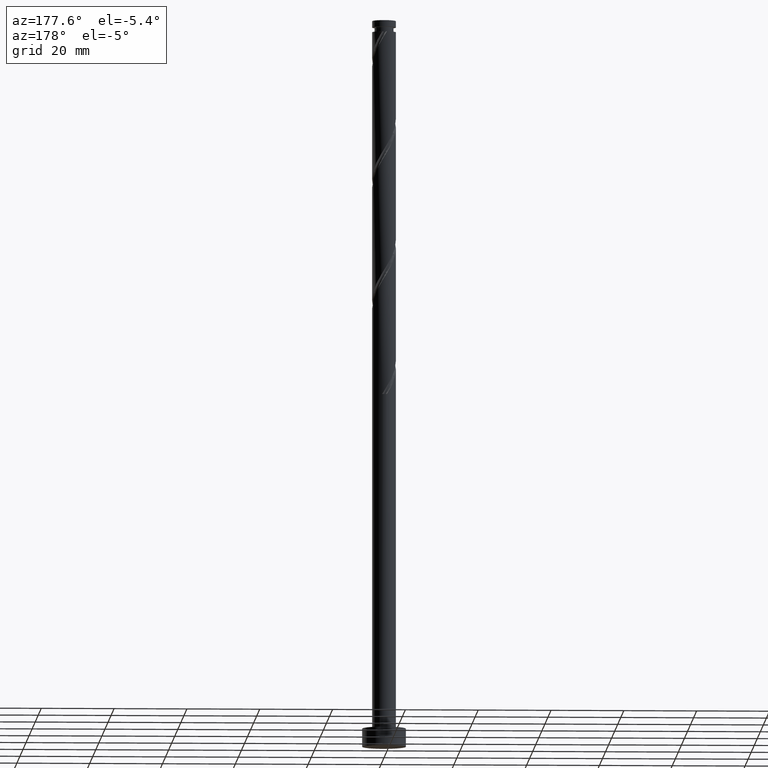
[diagram: clean part render]
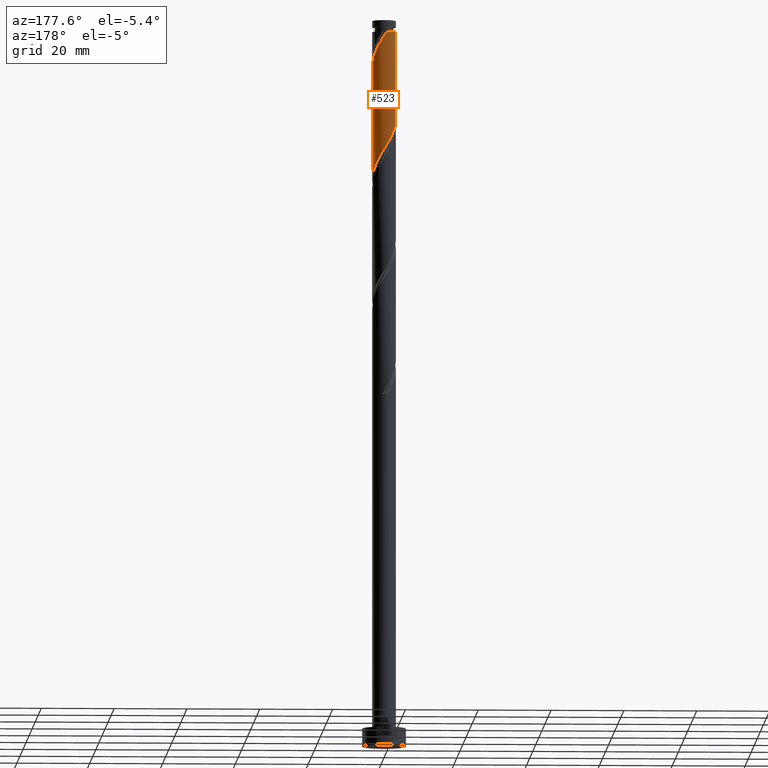
[diagram: same view with one face highlighted and labeled with its STEP entity id]
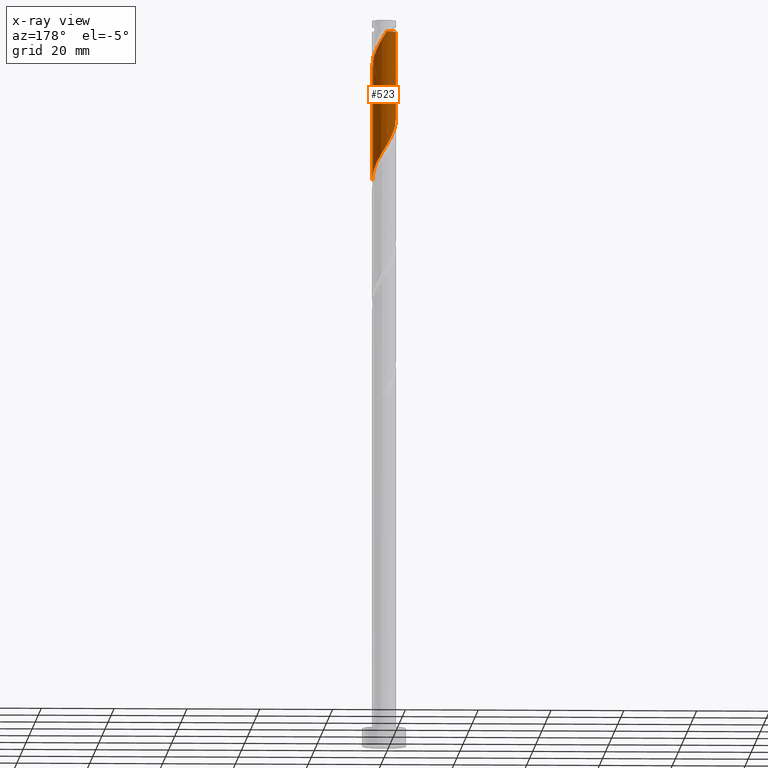
[diagram: x-ray of the same camera — body ghosted, the highlighted face saturated]
A machine part, auxiliary view. The second image highlights one B-rep face of the part: STEP entity #523.
The next image is the same camera in x-ray: the body ghosted, the highlighted face saturated — about 0% of this face is hidden behind the body in this view.
In plain terms, the highlighted cylindrical surface (edge-blend (fillet) strip) has radius 3.25 mm, axis along (-0, -0, -1).
Its self-contained STEP definition (entity closure, byte-faithful):
#8 = CARTESIAN_POINT ( 'NONE',  ( 2.151525504639375086, 2.473158156672228714, 192.0714547520551605 ) ) ;
#49 = CARTESIAN_POINT ( 'NONE',  ( -0.2274286293034398776, 3.270145177756065280, 196.2381214187219314 ) ) ;
#93 = CARTESIAN_POINT ( 'NONE',  ( -3.184999999999999165, 0.6467418341193040821, 171.9325658631663316 ) ) ;
#115 = CARTESIAN_POINT ( 'NONE',  ( -0.1996340181341325348, 3.243862860665293280, 164.9881214187218745 ) ) ;
#138 = DIRECTION ( 'NONE',  ( -0.000000000000000000, -0.000000000000000000, -1.000000000000000000 ) ) ;
#183 = CARTESIAN_POINT ( 'NONE',  ( -0.6467418341193279518, 3.185000000000000053, 196.9325658631663316 ) ) ;
#187 = CARTESIAN_POINT ( 'NONE',  ( -3.250000000000000444, 0.000000000000000000, 200.0000000000000000 ) ) ;
#196 = CARTESIAN_POINT ( 'NONE',  ( 1.438113618353373813, 2.945743112651654005, 193.4603436409441315 ) ) ;
#213 = VERTEX_POINT ( 'NONE', #902 ) ;
#234 = CARTESIAN_POINT ( 'NONE',  ( -2.434919993993785337, 2.152594858037458536, 169.1547880853885601 ) ) ;
#254 =( BOUNDED_CURVE ( )  B_SPLINE_CURVE ( 2, ( #1119, #424, #1264, #1381, #1110, #1660, #1393, #8, #1516, #196, #560, #725, #317, #49, #553 ),
 .UNSPECIFIED., .F., .T. ) 
 B_SPLINE_CURVE_WITH_KNOTS ( ( 3, 2, 2, 2, 2, 2, 2, 3 ),
 ( 0.6795317669814461281, 0.6875000000000000000, 0.6979166666666667407, 0.7083333333333332593, 0.7187499999999998890, 0.7291666666666666297, 0.7395833333333331483, 0.7499999999999998890 ),
 .UNSPECIFIED. ) 
 CURVE ( )  GEOMETRIC_REPRESENTATION_ITEM ( )  RATIONAL_B_SPLINE_CURVE ( ( 0.9062941362546508284, 0.9031415850403547996, 0.9090909090909304879, 0.9013135103398486336, 0.9090909090909304879, 0.9013135103398486336, 0.9090909090909304879, 0.9013135103398486336, 0.9090909090909304879, 0.9013135103398486336, 0.9090909090909304879, 0.9013135103398486336, 0.9090909090909304879, 0.9013135103398486336, 0.9090909090909304879 ) ) 
 REPRESENTATION_ITEM ( '' )  );
#258 = CARTESIAN_POINT ( 'NONE',  ( 3.249999999999999556, 0.09991134288744438208, 156.4926295397378908 ) ) ;
#317 = CARTESIAN_POINT ( 'NONE',  ( 0.1996340181341361431, 3.243862860665297276, 195.5436769742773606 ) ) ;
#340 = EDGE_LOOP ( 'NONE', ( #1582, #468, #992, #1102, #479 ) ) ;
#366 = CARTESIAN_POINT ( 'NONE',  ( 2.152594858037459424, 2.434919993993784004, 160.8214547520551889 ) ) ;
#372 = CARTESIAN_POINT ( 'NONE',  ( 2.473158156672227825, 2.151525504639366648, 160.1270103076107034 ) ) ;
#377 =( BOUNDED_CURVE ( )  B_SPLINE_CURVE ( 2, ( #1323, #380, #93, #1594, #388, #1573, #234, #1172, #922, #622, #914, #1721, #115, #1329, #761, #1434, #1163, #496, #366, #372, #1709, #1186, #1578, #640, #648, #258, #791 ),
 .UNSPECIFIED., .F., .T. ) 
 B_SPLINE_CURVE_WITH_KNOTS ( ( 3, 2, 2, 2, 2, 2, 2, 2, 2, 2, 2, 2, 2, 3 ),
 ( 0.4295317669814461836, 0.4375000000000000000, 0.4479166666666666852, 0.4583333333333333148, 0.4687500000000000000, 0.4791666666666666852, 0.4895833333333333148, 0.5000000000000000000, 0.5104166666666666297, 0.5208333333333333703, 0.5312500000000000000, 0.5416666666666666297, 0.5520833333333333703, 0.5545317669814461281 ),
 .UNSPECIFIED. ) 
 CURVE ( )  GEOMETRIC_REPRESENTATION_ITEM ( )  RATIONAL_B_SPLINE_CURVE ( ( 0.9062941362546437229, 0.9031415850403479162, 0.9090909090909231605, 0.9013135103398417503, 0.9090909090909231605, 0.9013135103398417503, 0.9090909090909231605, 0.9013135103398417503, 0.9090909090909231605, 0.9013135103398417503, 0.9090909090909231605, 0.9013135103398417503, 0.9090909090909231605, 0.9013135103398417503, 0.9090909090909231605, 0.9013135103398417503, 0.9090909090909231605, 0.9013135103398417503, 0.9090909090909231605, 0.9013135103398417503, 0.9090909090909231605, 0.9013135103398417503, 0.9090909090909231605, 0.9013135103398417503, 0.9090909090909231605, 0.9072628343904169945, 0.9062941362546436119 ) ) 
 REPRESENTATION_ITEM ( '' )  );
#380 = CARTESIAN_POINT ( 'NONE',  ( -3.250000000000000888, 0.3266372899592414614, 172.4627061491871132 ) ) ;
#388 = CARTESIAN_POINT ( 'NONE',  ( -2.909084652796070980, 1.449043299168925270, 170.5436769742774459 ) ) ;
#424 = CARTESIAN_POINT ( 'NONE',  ( 3.250000000000006661, 0.3266372899592379642, 188.0690922438122072 ) ) ;
#468 = ORIENTED_EDGE ( 'NONE', *, *, #1626, .T. ) ;
#479 = ORIENTED_EDGE ( 'NONE', *, *, #503, .T. ) ;
#496 = CARTESIAN_POINT ( 'NONE',  ( 1.832031559402691023, 2.718314483348200916, 161.5158991964995892 ) ) ;
#503 = EDGE_CURVE ( 'NONE', #578, #1278, #630, .T. ) ;
#523 = ADVANCED_FACE ( 'NONE', ( #1623 ), #1477, .T. ) ;
#553 = CARTESIAN_POINT ( 'NONE',  ( -0.6467418341193279518, 3.184999999999999609, 196.9325658631663316 ) ) ;
#560 = CARTESIAN_POINT ( 'NONE',  ( 1.032405141962544848, 3.081661828113091861, 194.1547880853885033 ) ) ;
#578 = VERTEX_POINT ( 'NONE', #1743 ) ;
#594 = DIRECTION ( 'NONE',  ( -0.000000000000000000, -0.000000000000000000, -1.000000000000000000 ) ) ;
#622 = CARTESIAN_POINT ( 'NONE',  ( -1.438113618353368928, 2.945743112651649565, 167.0714547520551889 ) ) ;
#630 = CIRCLE ( 'NONE', #659, 3.249999999999988454 ) ;
#640 = CARTESIAN_POINT ( 'NONE',  ( 3.217580543574526608, 0.6266966655717109980, 157.3492325298329604 ) ) ;
#648 = CARTESIAN_POINT ( 'NONE',  ( 3.243862860665293280, 0.1996340181341310638, 156.6547880853885601 ) ) ;
#659 = AXIS2_PLACEMENT_3D ( 'NONE', #1334, #138, #947 ) ;
#680 = EDGE_CURVE ( 'NONE', #578, #682, #1246, .T. ) ;
#682 = VERTEX_POINT ( 'NONE', #982 ) ;
#700 = DIRECTION ( 'NONE',  ( -0.000000000000000000, -0.000000000000000000, -1.000000000000000000 ) ) ;
#725 = CARTESIAN_POINT ( 'NONE',  ( 0.6266966655717167711, 3.217580543574532381, 194.8492325298329604 ) ) ;
#755 = VERTEX_POINT ( 'NONE', #1101 ) ;
#761 = CARTESIAN_POINT ( 'NONE',  ( 0.6467418341193045261, 3.184999999999999165, 163.5992325298329604 ) ) ;
#791 = CARTESIAN_POINT ( 'NONE',  ( 3.249999999999999556, 4.605765608634991276E-15, 156.3294658517096991 ) ) ;
#902 = CARTESIAN_POINT ( 'NONE',  ( 3.250000000000004441, -1.151441402158738550E-15, 187.5356658746228788 ) ) ;
#914 = CARTESIAN_POINT ( 'NONE',  ( -1.032405141962541295, 3.081661828113089197, 166.3770103076107318 ) ) ;
#922 = CARTESIAN_POINT ( 'NONE',  ( -1.794819561496369120, 2.709450634661939361, 167.7658991964996744 ) ) ;
#947 = DIRECTION ( 'NONE',  ( -1.000000000000000000, 0.000000000000000000, 0.000000000000000000 ) ) ;
#961 = EDGE_CURVE ( 'NONE', #213, #1278, #254, .T. ) ;
#982 = CARTESIAN_POINT ( 'NONE',  ( -3.250000000000000000, 2.542143355415417027E-15, 172.9961325183763847 ) ) ;
#992 = ORIENTED_EDGE ( 'NONE', *, *, #1330, .F. ) ;
#1101 = CARTESIAN_POINT ( 'NONE',  ( 3.249999999999999556, 4.605765608634991276E-15, 156.3294658517096991 ) ) ;
#1102 = ORIENTED_EDGE ( 'NONE', *, *, #680, .F. ) ;
#1110 = CARTESIAN_POINT ( 'NONE',  ( 2.909084652796076309, 1.449043299168924825, 189.9881214187218461 ) ) ;
#1119 = CARTESIAN_POINT ( 'NONE',  ( 3.250000000000004441, -1.151441402158738550E-15, 187.5356658746228788 ) ) ;
#1145 = LINE ( 'NONE', #1685, #1505 ) ;
#1163 = CARTESIAN_POINT ( 'NONE',  ( 1.449043299168927268, 2.909084652796070092, 162.2103436409441031 ) ) ;
#1172 = CARTESIAN_POINT ( 'NONE',  ( -2.151525504639367536, 2.473158156672226493, 168.4603436409440178 ) ) ;
#1186 = CARTESIAN_POINT ( 'NONE',  ( 2.945743112651650009, 1.438113618353366707, 158.7381214187217893 ) ) ;
#1198 = AXIS2_PLACEMENT_3D ( 'NONE', #1488, #1231, #1498 ) ;
#1231 = DIRECTION ( 'NONE',  ( -0.000000000000000000, -0.000000000000000000, -1.000000000000000000 ) ) ;
#1246 = LINE ( 'NONE', #187, #1256 ) ;
#1256 = VECTOR ( 'NONE', #594, 1000.000000000000000 ) ;
#1264 = CARTESIAN_POINT ( 'NONE',  ( 3.185000000000004494, 0.6467418341193036380, 188.5992325298329320 ) ) ;
#1278 = VERTEX_POINT ( 'NONE', #183 ) ;
#1323 = CARTESIAN_POINT ( 'NONE',  ( -3.250000000000000000, 2.542143355415417027E-15, 172.9961325183763847 ) ) ;
#1329 = CARTESIAN_POINT ( 'NONE',  ( 0.2274286293034480100, 3.270145177756058619, 164.2936769742773890 ) ) ;
#1330 = EDGE_CURVE ( 'NONE', #682, #755, #377, .T. ) ;
#1334 = CARTESIAN_POINT ( 'NONE',  ( 0.000000000000000000, 0.000000000000000000, 196.9325658631663032 ) ) ;
#1381 = CARTESIAN_POINT ( 'NONE',  ( 3.099854822243945929, 1.066055038935159960, 189.2936769742774459 ) ) ;
#1393 = CARTESIAN_POINT ( 'NONE',  ( 2.434919993993790222, 2.152594858037458536, 191.3770103076106750 ) ) ;
#1434 = CARTESIAN_POINT ( 'NONE',  ( 1.066055038935162402, 3.099854822243937935, 162.9047880853884749 ) ) ;
#1477 = CYLINDRICAL_SURFACE ( 'NONE', #1198, 3.250000000000000444 ) ;
#1488 = CARTESIAN_POINT ( 'NONE',  ( 0.000000000000000000, 0.000000000000000000, 200.0000000000000000 ) ) ;
#1498 = DIRECTION ( 'NONE',  ( -1.000000000000000000, 0.000000000000000000, 0.000000000000000000 ) ) ;
#1505 = VECTOR ( 'NONE', #700, 1000.000000000000000 ) ;
#1516 = CARTESIAN_POINT ( 'NONE',  ( 1.794819561496372451, 2.709450634661941582, 192.7658991964996460 ) ) ;
#1573 = CARTESIAN_POINT ( 'NONE',  ( -2.718314483348201804, 1.832031559402689469, 169.8492325298330172 ) ) ;
#1578 = CARTESIAN_POINT ( 'NONE',  ( 3.081661828113089641, 1.032405141962539075, 158.0436769742773890 ) ) ;
#1582 = ORIENTED_EDGE ( 'NONE', *, *, #961, .F. ) ;
#1594 = CARTESIAN_POINT ( 'NONE',  ( -3.099854822243938823, 1.066055038935159516, 171.2381214187218177 ) ) ;
#1623 = FACE_OUTER_BOUND ( 'NONE', #340, .T. ) ;
#1626 = EDGE_CURVE ( 'NONE', #213, #755, #1145, .T. ) ;
#1660 = CARTESIAN_POINT ( 'NONE',  ( 2.718314483348208022, 1.832031559402690579, 190.6825658631663032 ) ) ;
#1685 = CARTESIAN_POINT ( 'NONE',  ( 3.250000000000000444, 3.980102097228898231E-16, 200.0000000000000000 ) ) ;
#1709 = CARTESIAN_POINT ( 'NONE',  ( 2.709450634661939361, 1.794819561496368232, 159.4325658631663316 ) ) ;
#1721 = CARTESIAN_POINT ( 'NONE',  ( -0.6266966655717128853, 3.217580543574526164, 165.6825658631663032 ) ) ;
#1743 = CARTESIAN_POINT ( 'NONE',  ( -3.249999999999988454, 0.000000000000000000, 196.9325658631663032 ) ) ;